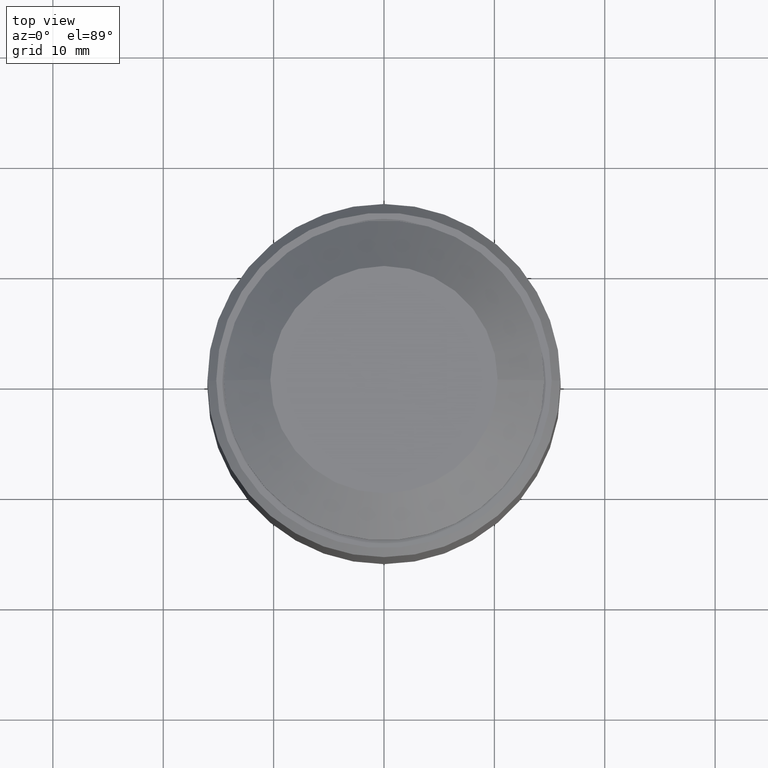
[diagram: clean part render]
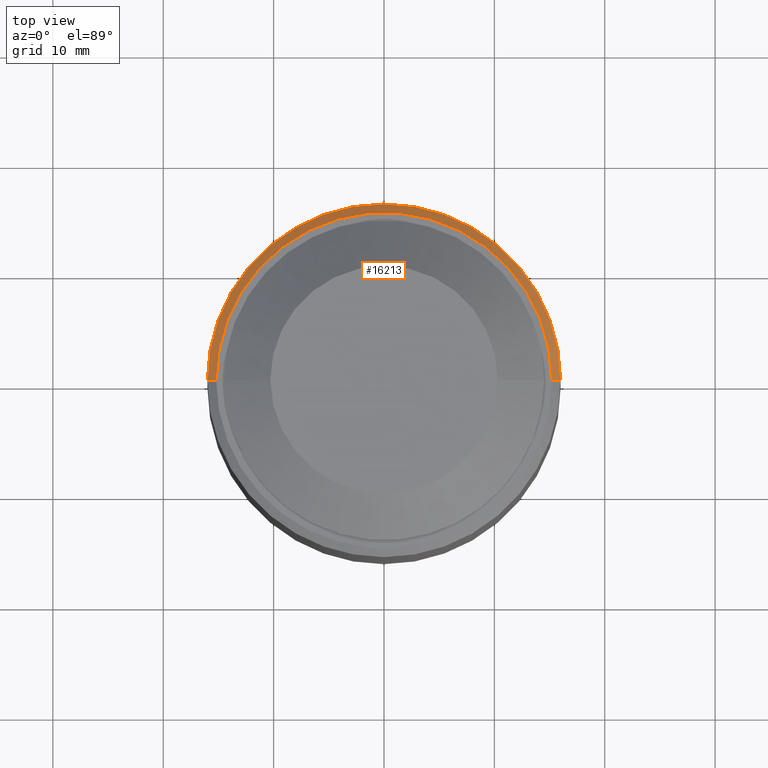
[diagram: same view with one face highlighted and labeled with its STEP entity id]
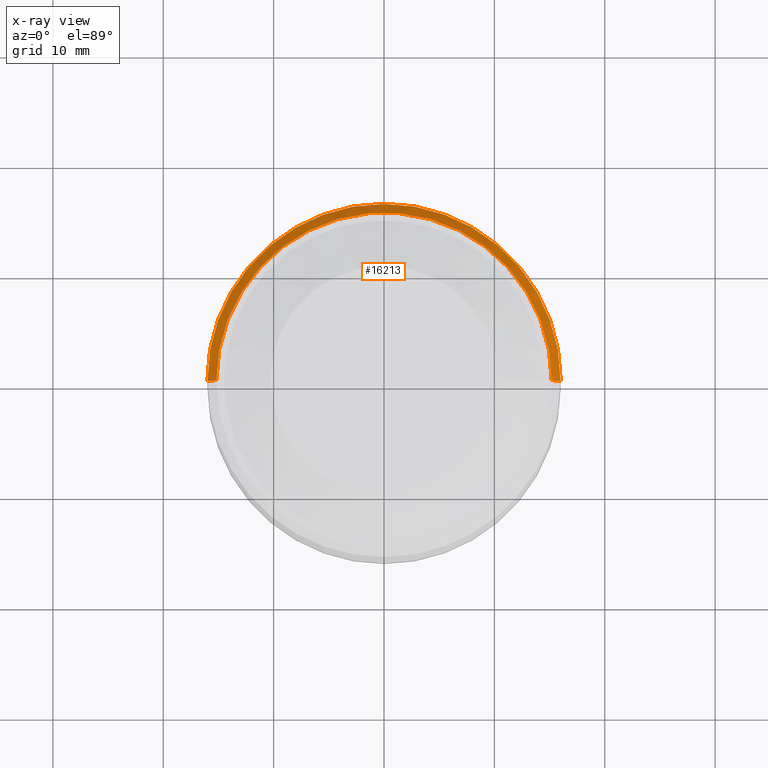
[diagram: x-ray of the same camera — body ghosted, the highlighted face saturated]
A machine part, top view. The second image highlights one B-rep face of the part: STEP entity #16213.
The next image is the same camera in x-ray: the body ghosted, the highlighted face saturated — about 0% of this face is hidden behind the body in this view.
In plain terms, the highlighted conical surface has half-angle 45 deg.
Its self-contained STEP definition (entity closure, byte-faithful):
#663 = AXIS2_PLACEMENT_3D ( 'NONE', #10204, #7816, #3897 ) ;
#2293 = VERTEX_POINT ( 'NONE', #12176 ) ;
#2603 = ORIENTED_EDGE ( 'NONE', *, *, #13427, .F. ) ;
#2739 = ORIENTED_EDGE ( 'NONE', *, *, #22162, .F. ) ;
#3484 = AXIS2_PLACEMENT_3D ( 'NONE', #7922, #7502, #8989 ) ;
#3858 = DIRECTION ( 'NONE',  ( 1.000000000000000000, 0.000000000000000000, 0.000000000000000000 ) ) ;
#3897 = DIRECTION ( 'NONE',  ( -1.000000000000000000, 0.000000000000000000, 0.000000000000000000 ) ) ;
#5108 = CARTESIAN_POINT ( 'NONE',  ( -15.99999999999998579, 0.000000000000000000, 43.53300000000000125 ) ) ;
#6351 = LINE ( 'NONE', #8459, #16083 ) ;
#7338 = ORIENTED_EDGE ( 'NONE', *, *, #17396, .T. ) ;
#7502 = DIRECTION ( 'NONE',  ( 0.000000000000000000, 0.000000000000000000, 1.000000000000000000 ) ) ;
#7712 = VECTOR ( 'NONE', #19884, 999.9999999999998863 ) ;
#7816 = DIRECTION ( 'NONE',  ( 0.000000000000000000, 0.000000000000000000, -1.000000000000000000 ) ) ;
#7884 = ORIENTED_EDGE ( 'NONE', *, *, #8149, .F. ) ;
#7922 = CARTESIAN_POINT ( 'NONE',  ( 0.000000000000000000, 0.000000000000000000, 44.33299999999999841 ) ) ;
#8149 = EDGE_CURVE ( 'NONE', #11014, #2293, #20062, .T. ) ;
#8459 = CARTESIAN_POINT ( 'NONE',  ( 15.19999999999999929, 1.861463134703977092E-15, 44.33299999999999841 ) ) ;
#8989 = DIRECTION ( 'NONE',  ( 1.000000000000000000, 0.000000000000000000, 0.000000000000000000 ) ) ;
#10204 = CARTESIAN_POINT ( 'NONE',  ( 0.000000000000000000, 0.000000000000000000, 44.33299999999999841 ) ) ;
#11014 = VERTEX_POINT ( 'NONE', #17379 ) ;
#12124 = DIRECTION ( 'NONE',  ( 0.000000000000000000, 0.000000000000000000, -1.000000000000000000 ) ) ;
#12176 = CARTESIAN_POINT ( 'NONE',  ( -15.19999999999999929, 0.000000000000000000, 44.33299999999999841 ) ) ;
#13219 = CONICAL_SURFACE ( 'NONE', #663, 15.19999999999999929, 0.7853981633974419507 ) ;
#13427 = EDGE_CURVE ( 'NONE', #2293, #13818, #19231, .T. ) ;
#13815 = CARTESIAN_POINT ( 'NONE',  ( 15.99999999999998579, 1.959434878635763554E-15, 43.53300000000000125 ) ) ;
#13818 = VERTEX_POINT ( 'NONE', #5108 ) ;
#14660 = CARTESIAN_POINT ( 'NONE',  ( 0.000000000000000000, 0.000000000000000000, 43.53300000000000125 ) ) ;
#15316 = DIRECTION ( 'NONE',  ( 0.7071067811865431318, 8.659560562354878624E-17, -0.7071067811865520136 ) ) ;
#16083 = VECTOR ( 'NONE', #15316, 999.9999999999998863 ) ;
#16213 = ADVANCED_FACE ( 'NONE', ( #16813 ), #13219, .T. ) ;
#16539 = EDGE_LOOP ( 'NONE', ( #7884, #7338, #2739, #2603 ) ) ;
#16813 = FACE_OUTER_BOUND ( 'NONE', #16539, .T. ) ;
#17379 = CARTESIAN_POINT ( 'NONE',  ( 15.19999999999999929, 1.910449006669870126E-15, 44.33299999999999841 ) ) ;
#17396 = EDGE_CURVE ( 'NONE', #11014, #19656, #6351, .T. ) ;
#17942 = AXIS2_PLACEMENT_3D ( 'NONE', #14660, #12124, #3858 ) ;
#19231 = LINE ( 'NONE', #23175, #7712 ) ;
#19656 = VERTEX_POINT ( 'NONE', #13815 ) ;
#19884 = DIRECTION ( 'NONE',  ( -0.7071067811865431318, 0.000000000000000000, -0.7071067811865520136 ) ) ;
#20062 = CIRCLE ( 'NONE', #3484, 15.19999999999999929 ) ;
#20614 = CIRCLE ( 'NONE', #17942, 16.00000000000000000 ) ;
#22162 = EDGE_CURVE ( 'NONE', #13818, #19656, #20614, .T. ) ;
#23175 = CARTESIAN_POINT ( 'NONE',  ( -15.19999999999999929, 0.000000000000000000, 44.33299999999999841 ) ) ;